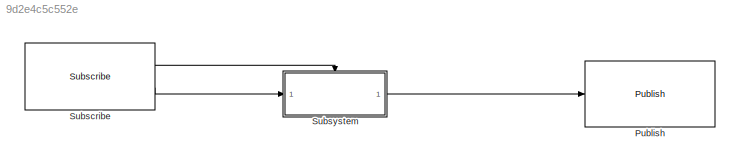
MODEL slx_9d2e4c5c552e
KIND model
CONFIG AbsTol = auto
CONFIG EnableMultiTasking = off
CONFIG FixedStep = 0.05
CONFIG MaxStep = auto
CONFIG MinStep = auto
CONFIG RelTol = 1e-3
CONFIG SampleTimeConstraint = Unconstrained
CONFIG Solver = FixedStepAuto
CONFIG SolverName = FixedStepAuto
CONFIG StartTime = 0.0
CONFIG StopTime = inf
WORKSPACE source: MAT-file member
WORKSPACE SL_ROS_VariableLengthArrays_MaxSizes: struct (value not decoded)
BLOCK [Reference] Publish  REF=robotlib/Publish
  Ports = [1]
  SourceBlock = robotlib/Publish
  SourceProductBaseCode = RO
  SourceProductName = Robotics System Toolbox
  SourceType = ROS Publish
BLOCK [Reference] Subscribe  REF=robotlib/Subscribe
  Ports = [0, 2]
  SourceBlock = robotlib/Subscribe
  SourceProductBaseCode = RO
  SourceProductName = Robotics System Toolbox
  SourceType = ROS Subscribe
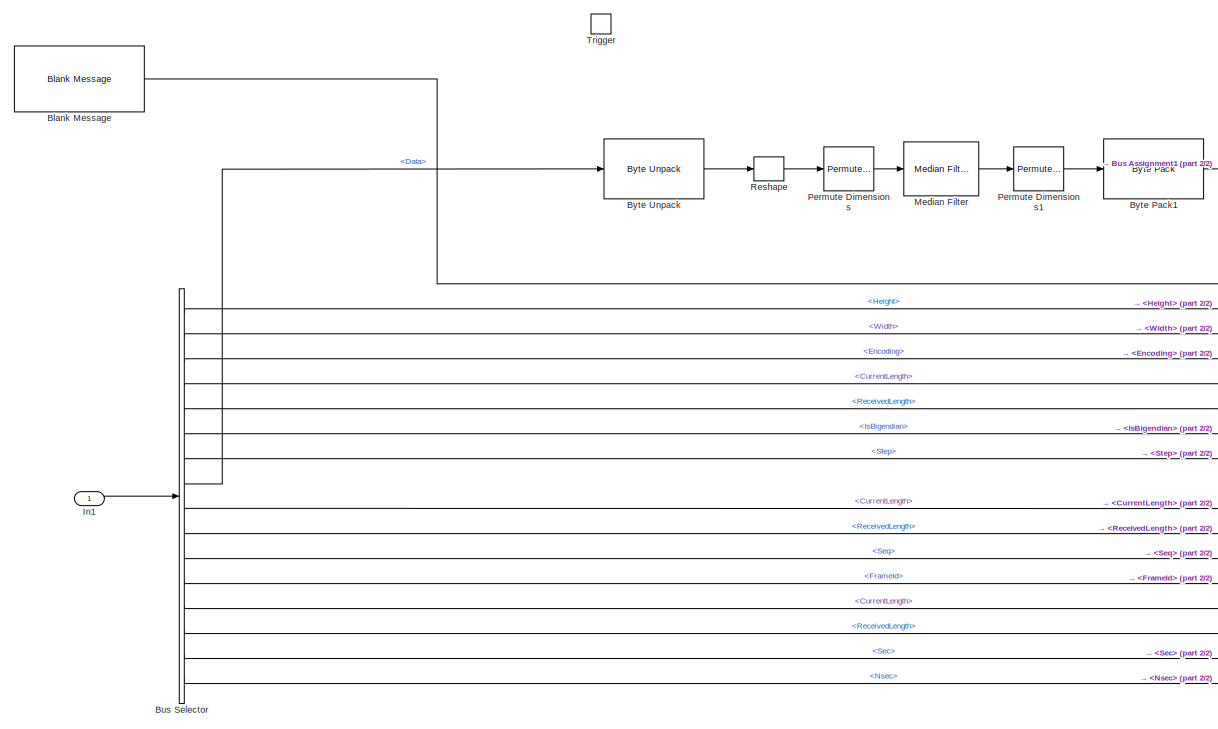
[diagram: Subsystem - part 1/2, center side, full height]
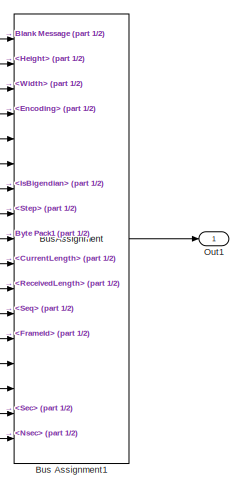
[diagram: Subsystem - part 2/2, bottom right region]
BLOCK [SubSystem] Subsystem
  Ports = [1, 1, 0, 1]
  RequestExecContextInheritance = off
BLOCK [Reference] Subsystem/Blank Message  REF=robotlib/Blank Message
  Ports = [0, 1]
  SourceBlock = robotlib/Blank Message
  SourceProductBaseCode = RO
  SourceProductName = Robotics System Toolbox
  SourceType = ROS Blank Message
BLOCK [BusAssignment] Subsystem/Bus Assignment1
  AssignedSignals = Height,Width,Encoding,Encoding_SL_Info.CurrentLength,Encoding_SL_Info.ReceivedLength,IsBigendian,Step,Data,Data_SL_Info.CurrentLength,Data_SL_Info.ReceivedLength,Header.Seq,Header.FrameId,Header.FrameId_SL_Info.CurrentLength,Header.FrameId_SL_Info.ReceivedLength,Header.Stamp.Sec,Header.Stamp.Nsec
  Ports = [17, 1]
BLOCK [BusSelector] Subsystem/Bus Selector
  OutputAsBus = off
  OutputSignals = Height,Width,Encoding,Encoding_SL_Info.CurrentLength,Encoding_SL_Info.ReceivedLength,IsBigendian,Step,Data,Data_SL_Info.CurrentLength,Data_SL_Info.ReceivedLength,Header.Seq,Header.FrameId,Header.FrameId_SL_Info.CurrentLength,Header.FrameId_SL_Info.ReceivedLength,Header.Stamp.Sec,Header.Stamp.Nsec
  Ports = [1, 16]
BLOCK [Reference] Subsystem/Byte Pack1  REF=svdutilitieslib/Byte Pack
  Ports = [1, 1]
  SourceBlock = svdutilitieslib/Byte Pack
  SourceProductBaseCode = ARDUINO
  SourceProductName = Simulink Support Package for Arduino Hardware
  SourceType = Byte pack
BLOCK [Reference] Subsystem/Byte Unpack  REF=svdutilitieslib/Byte Unpack
  Ports = [1, 1]
  SourceBlock = svdutilitieslib/Byte Unpack
  SourceProductBaseCode = ARDUINO
  SourceProductName = Simulink Support Package for Arduino Hardware
  SourceType = Byte Unpack
BLOCK [Inport] Subsystem/In1
  IconDisplay = Port number
BLOCK [Reference] Subsystem/Median Filter  REF=visionanalysis/Median Filter
  Ports = [1, 1]
  SourceBlock = visionanalysis/Median Filter
  SourceProductBaseCode = VP
  SourceProductName = Computer Vision System Toolbox
  SourceType = Median Filter
BLOCK [Outport] Subsystem/Out1
  IconDisplay = Port number
BLOCK [PermuteDimensions] Subsystem/Permute Dimensions
BLOCK [PermuteDimensions] Subsystem/Permute Dimensions1
BLOCK [Reshape] Subsystem/Reshape
  OutputDimensionality = Customize
  OutputDimensions = [960,540]
  Ports = [1, 1]
BLOCK [TriggerPort] Subsystem/Trigger
  PortDimensions = 1
  Ports = []
  StatesWhenEnabling = held
  VariantControl = Variant
LINE Subscribe:1 -> Subsystem:trigger
LINE Subscribe:2 -> Subsystem:1
LINE Subsystem/Blank Message:1 -> Subsystem/Bus Assignment1:1
LINE Subsystem/Bus Assignment1:1 -> Subsystem/Out1:1
LINE Subsystem/Bus Selector:1 -> Subsystem/Bus Assignment1:2
LINE Subsystem/Bus Selector:10 -> Subsystem/Bus Assignment1:11
LINE Subsystem/Bus Selector:11 -> Subsystem/Bus Assignment1:12
LINE Subsystem/Bus Selector:12 -> Subsystem/Bus Assignment1:13
LINE Subsystem/Bus Selector:13 -> Subsystem/Bus Assignment1:14
LINE Subsystem/Bus Selector:14 -> Subsystem/Bus Assignment1:15
LINE Subsystem/Bus Selector:15 -> Subsystem/Bus Assignment1:16
LINE Subsystem/Bus Selector:16 -> Subsystem/Bus Assignment1:17
LINE Subsystem/Bus Selector:2 -> Subsystem/Bus Assignment1:3
LINE Subsystem/Bus Selector:3 -> Subsystem/Bus Assignment1:4
LINE Subsystem/Bus Selector:4 -> Subsystem/Bus Assignment1:5
LINE Subsystem/Bus Selector:5 -> Subsystem/Bus Assignment1:6
LINE Subsystem/Bus Selector:6 -> Subsystem/Bus Assignment1:7
LINE Subsystem/Bus Selector:7 -> Subsystem/Bus Assignment1:8
LINE Subsystem/Bus Selector:8 -> Subsystem/Byte Unpack:1
LINE Subsystem/Bus Selector:9 -> Subsystem/Bus Assignment1:10
LINE Subsystem/Byte Pack1:1 -> Subsystem/Bus Assignment1:9
LINE Subsystem/Byte Unpack:1 -> Subsystem/Reshape:1
LINE Subsystem/In1:1 -> Subsystem/Bus Selector:1
LINE Subsystem/Median Filter:1 -> Subsystem/Permute Dimensions1:1
LINE Subsystem/Permute Dimensions1:1 -> Subsystem/Byte Pack1:1
LINE Subsystem/Permute Dimensions:1 -> Subsystem/Median Filter:1
LINE Subsystem/Reshape:1 -> Subsystem/Permute Dimensions:1
LINE Subsystem:1 -> Publish:1
